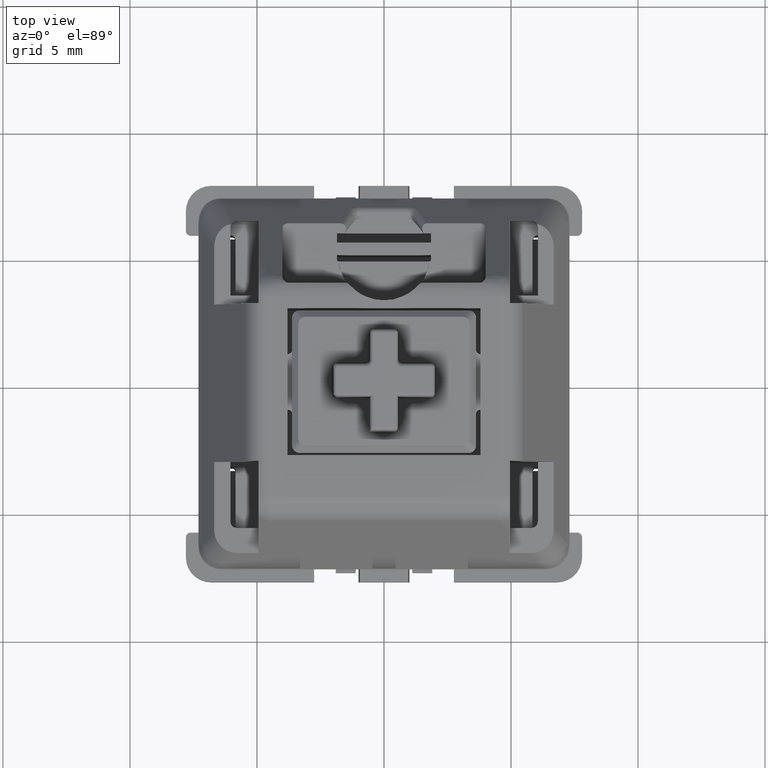
[diagram: clean part render]
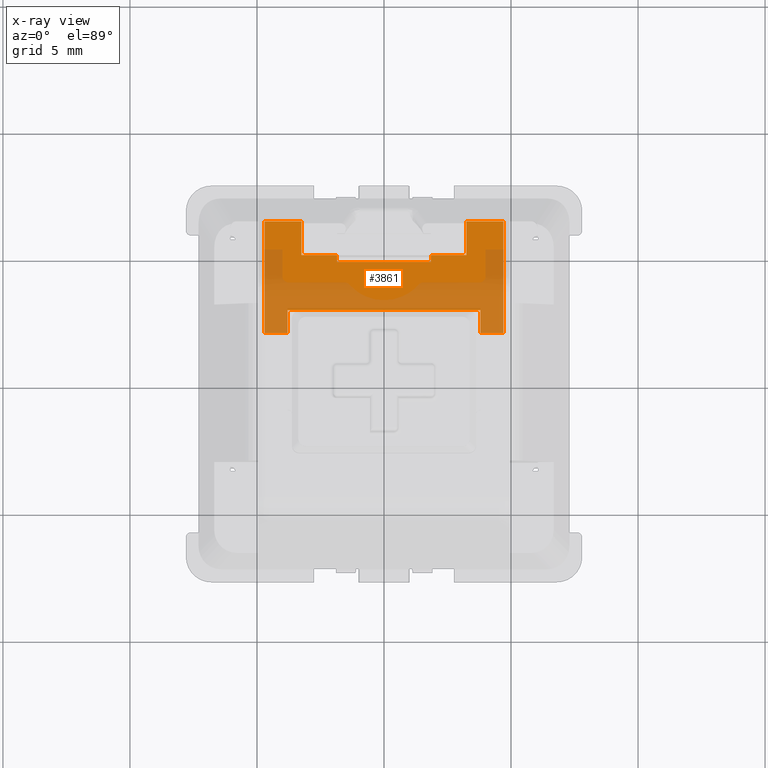
[diagram: x-ray — body ghosted, one internal face saturated and labeled with its STEP entity id]
A machine part, top view, then the same camera in x-ray: the body is ghosted and one INTERNAL B-rep face — a face not visible from any outside direction — is saturated and labeled: STEP entity #3861.
In plain terms, the highlighted planar face has unit normal (0, 0, 1).
Its self-contained STEP definition (entity closure, byte-faithful):
#3726=CARTESIAN_POINT('',(-0.203543307086614,0.07007874015748,3.496765E-016));
#3727=DIRECTION('',(0.0,0.0,1.0));
#3728=DIRECTION('',(1.0,0.0,0.0));
#3729=AXIS2_PLACEMENT_3D('',#3726,#3727,#3728);
#3730=PLANE('',#3729);
#3731=CARTESIAN_POINT('',(0.18503937007874,0.251968503937008,0.0));
#3732=VERTEX_POINT('',#3731);
#3733=CARTESIAN_POINT('',(0.18503937007874,0.078740157480315,8.741912E-017));
#3734=VERTEX_POINT('',#3733);
#3735=CARTESIAN_POINT('',(0.18503937007874,0.251968503937008,0.0));
#3736=DIRECTION('',(0.0,-1.0,0.0));
#3737=VECTOR('',#3736,0.173228346456693);
#3738=LINE('',#3735,#3737);
#3739=EDGE_CURVE('',#3732,#3734,#3738,.T.);
#3740=ORIENTED_EDGE('',*,*,#3739,.T.);
#3741=CARTESIAN_POINT('',(0.149606299212598,0.078740157480315,3.496765E-016));
#3742=VERTEX_POINT('',#3741);
#3743=CARTESIAN_POINT('',(0.18503937007874,0.078740157480315,3.496765E-016));
#3744=DIRECTION('',(-1.0,0.0,0.0));
#3745=VECTOR('',#3744,0.035433070866142);
#3746=LINE('',#3743,#3745);
#3747=EDGE_CURVE('',#3734,#3742,#3746,.T.);
#3748=ORIENTED_EDGE('',*,*,#3747,.T.);
#3749=CARTESIAN_POINT('',(0.149606299212598,0.114173228346457,3.626437E-016));
#3750=VERTEX_POINT('',#3749);
#3751=CARTESIAN_POINT('',(0.149606299212598,0.078740157480315,3.496765E-016));
#3752=DIRECTION('',(0.0,1.0,0.0));
#3753=VECTOR('',#3752,0.035433070866142);
#3754=LINE('',#3751,#3753);
#3755=EDGE_CURVE('',#3742,#3750,#3754,.T.);
#3756=ORIENTED_EDGE('',*,*,#3755,.T.);
#3757=CARTESIAN_POINT('',(-0.149606299212598,0.114173228346457,3.626437E-016));
#3758=VERTEX_POINT('',#3757);
#3759=CARTESIAN_POINT('',(0.149606299212598,0.114173228346457,3.496765E-016));
#3760=DIRECTION('',(-1.0,0.0,0.0));
#3761=VECTOR('',#3760,0.299212598425196);
#3762=LINE('',#3759,#3761);
#3763=EDGE_CURVE('',#3750,#3758,#3762,.T.);
#3764=ORIENTED_EDGE('',*,*,#3763,.T.);
#3765=CARTESIAN_POINT('',(-0.149606299212598,0.078740157480315,3.533918E-016));
#3766=VERTEX_POINT('',#3765);
#3767=CARTESIAN_POINT('',(-0.149606299212598,0.114173228346457,3.496765E-016));
#3768=DIRECTION('',(0.0,-1.0,0.0));
#3769=VECTOR('',#3768,0.035433070866142);
#3770=LINE('',#3767,#3769);
#3771=EDGE_CURVE('',#3758,#3766,#3770,.T.);
#3772=ORIENTED_EDGE('',*,*,#3771,.T.);
#3773=CARTESIAN_POINT('',(-0.18503937007874,0.078740157480315,8.741912E-017));
#3774=VERTEX_POINT('',#3773);
#3775=CARTESIAN_POINT('',(-0.149606299212598,0.078740157480315,3.496765E-016));
#3776=DIRECTION('',(-1.0,0.0,0.0));
#3777=VECTOR('',#3776,0.035433070866142);
#3778=LINE('',#3775,#3777);
#3779=EDGE_CURVE('',#3766,#3774,#3778,.T.);
#3780=ORIENTED_EDGE('',*,*,#3779,.T.);
#3781=CARTESIAN_POINT('',(-0.18503937007874,0.251968503937008,0.0));
#3782=VERTEX_POINT('',#3781);
#3783=CARTESIAN_POINT('',(-0.18503937007874,0.078740157480315,0.0));
#3784=DIRECTION('',(0.0,1.0,0.0));
#3785=VECTOR('',#3784,0.173228346456693);
#3786=LINE('',#3783,#3785);
#3787=EDGE_CURVE('',#3774,#3782,#3786,.T.);
#3788=ORIENTED_EDGE('',*,*,#3787,.T.);
#3789=CARTESIAN_POINT('',(-0.127952755905512,0.251968503937008,0.0));
#3790=VERTEX_POINT('',#3789);
#3791=CARTESIAN_POINT('',(-0.18503937007874,0.251968503937008,0.0));
#3792=DIRECTION('',(1.0,0.0,0.0));
#3793=VECTOR('',#3792,0.057086614173228);
#3794=LINE('',#3791,#3793);
#3795=EDGE_CURVE('',#3782,#3790,#3794,.T.);
#3796=ORIENTED_EDGE('',*,*,#3795,.T.);
#3797=CARTESIAN_POINT('',(-0.127952755905512,0.19963345087303,0.0));
#3798=VERTEX_POINT('',#3797);
#3799=CARTESIAN_POINT('',(-0.127952755905512,0.19963345087303,0.0));
#3800=DIRECTION('',(0.0,1.0,0.0));
#3801=VECTOR('',#3800,0.052335053063978);
#3802=LINE('',#3799,#3801);
#3803=EDGE_CURVE('',#3798,#3790,#3802,.T.);
#3804=ORIENTED_EDGE('',*,*,#3803,.F.);
#3805=CARTESIAN_POINT('',(-0.072834645669292,0.19963345087303,8.741912E-017));
#3806=VERTEX_POINT('',#3805);
#3807=CARTESIAN_POINT('',(-0.072834645669292,0.19963345087303,0.0));
#3808=DIRECTION('',(-1.0,0.0,0.0));
#3809=VECTOR('',#3808,0.05511811023622);
#3810=LINE('',#3807,#3809);
#3811=EDGE_CURVE('',#3806,#3798,#3810,.T.);
#3812=ORIENTED_EDGE('',*,*,#3811,.F.);
#3813=CARTESIAN_POINT('',(-0.072834645669292,0.189092172301992,3.487659E-016));
#3814=VERTEX_POINT('',#3813);
#3815=CARTESIAN_POINT('',(-0.072834645669292,0.19963345087303,3.496765E-016));
#3816=DIRECTION('',(0.0,-1.0,0.0));
#3817=VECTOR('',#3816,0.010541278571038);
#3818=LINE('',#3815,#3817);
#3819=EDGE_CURVE('',#3806,#3814,#3818,.T.);
#3820=ORIENTED_EDGE('',*,*,#3819,.T.);
#3821=CARTESIAN_POINT('',(0.072834645669291,0.189092172301992,3.487659E-016));
#3822=VERTEX_POINT('',#3821);
#3823=CARTESIAN_POINT('',(-0.072834645669292,0.189092172301992,3.496765E-016));
#3824=DIRECTION('',(1.0,0.0,0.0));
#3825=VECTOR('',#3824,0.145669291338583);
#3826=LINE('',#3823,#3825);
#3827=EDGE_CURVE('',#3814,#3822,#3826,.T.);
#3828=ORIENTED_EDGE('',*,*,#3827,.T.);
#3829=CARTESIAN_POINT('',(0.072834645669291,0.19963345087303,8.741912E-017));
#3830=VERTEX_POINT('',#3829);
#3831=CARTESIAN_POINT('',(0.072834645669291,0.189092172301992,3.496765E-016));
#3832=DIRECTION('',(0.0,1.0,0.0));
#3833=VECTOR('',#3832,0.010541278571038);
#3834=LINE('',#3831,#3833);
#3835=EDGE_CURVE('',#3822,#3830,#3834,.T.);
#3836=ORIENTED_EDGE('',*,*,#3835,.T.);
#3837=CARTESIAN_POINT('',(0.127952755905512,0.19963345087303,0.0));
#3838=VERTEX_POINT('',#3837);
#3839=CARTESIAN_POINT('',(0.127952755905512,0.19963345087303,0.0));
#3840=DIRECTION('',(-1.0,0.0,0.0));
#3841=VECTOR('',#3840,0.055118110236221);
#3842=LINE('',#3839,#3841);
#3843=EDGE_CURVE('',#3838,#3830,#3842,.T.);
#3844=ORIENTED_EDGE('',*,*,#3843,.F.);
#3845=CARTESIAN_POINT('',(0.127952755905512,0.251968503937008,0.0));
#3846=VERTEX_POINT('',#3845);
#3847=CARTESIAN_POINT('',(0.127952755905512,0.251968503937008,0.0));
#3848=DIRECTION('',(0.0,-1.0,0.0));
#3849=VECTOR('',#3848,0.052335053063978);
#3850=LINE('',#3847,#3849);
#3851=EDGE_CURVE('',#3846,#3838,#3850,.T.);
#3852=ORIENTED_EDGE('',*,*,#3851,.F.);
#3853=CARTESIAN_POINT('',(0.127952755905512,0.251968503937008,0.0));
#3854=DIRECTION('',(1.0,0.0,0.0));
#3855=VECTOR('',#3854,0.057086614173228);
#3856=LINE('',#3853,#3855);
#3857=EDGE_CURVE('',#3846,#3732,#3856,.T.);
#3858=ORIENTED_EDGE('',*,*,#3857,.T.);
#3859=EDGE_LOOP('',(#3740,#3748,#3756,#3764,#3772,#3780,#3788,#3796,#3804,#3812,#3820,#3828,#3836,#3844,#3852,#3858));
#3860=FACE_OUTER_BOUND('',#3859,.T.);
#3861=ADVANCED_FACE('',(#3860),#3730,.F.);